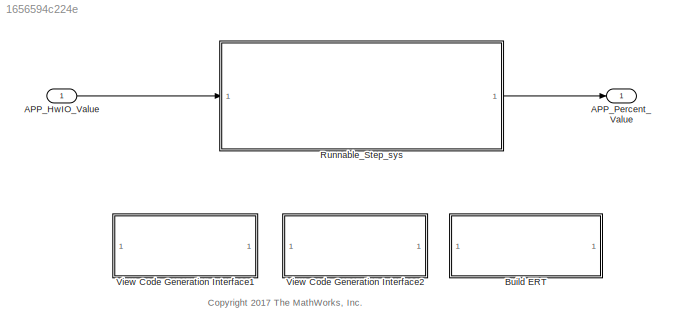
MODEL slx_1656594c224e
KIND model
CONFIG AbsTol = auto
CONFIG EnableMultiTasking = off
CONFIG FixedStep = 0.005
CONFIG MaxStep = auto
CONFIG MinStep = auto
CONFIG PreLoadFcn = SetpointPercent_LkupTbl = Simulink.LookupTable;\nSetpointPercent_LkupTbl.Table.DataType = 'single';\nSetpointPercent_LkupTbl.Table.FieldName = 'Table';\nSetpointPercent_LkupTbl.Table.Value = ...\n  [0 10 20 30 40 50 60 70 80 90 100];\nSetpointPercent_LkupTbl.BreakpointsSpecification = 'Explicit values';\nSetpointPercent_LkupTbl.SupportTunableSize = false;\nSetpointPercent_LkupTbl.Breakpoints.DataType = '...<+278ch>
CONFIG RelTol = 1e-3
CONFIG SampleTimeConstraint = Unconstrained
CONFIG SolverName = FixedStepDiscrete
CONFIG StartTime = 0.0
CONFIG StopTime = 10.0
BLOCK [Inport] APP_HwIO_Value
  OutDataTypeStr = uint16
  PortDimensions = 1
  SamplingMode = Sample based
  SignalType = real
BLOCK [Outport] APP_Percent_Value
  OutDataTypeStr = single
  PortDimensions = 1
  SamplingMode = Sample based
  SignalType = real
  VectorParamsAs1DForOutWhenUnconnected = off
BLOCK [SubSystem] Build ERT
  OpenFcn = try\n    if ~exist('rtwdemo_ert', 'dir')\n        disp('Creating working directory rtwdemo_ert')\n        mkdir('rtwdemo_ert')\n    end\n    cd('rtwdemo_ert');\n    rtwbuilddemomodel(bdroot);\n    cd('..');\ncatch myException\n    rethrow(myException);\nend
  PermitHierarchicalResolution = ExplicitOnly
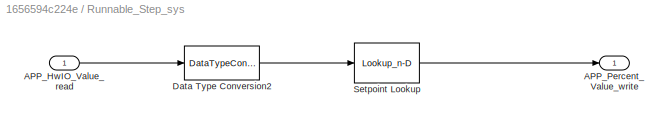
BLOCK [SubSystem] Runnable_Step_sys
  SystemSampleTime = 0.005
  TreatAsAtomicUnit = on
BLOCK [Inport] Runnable_Step_sys/APP_HwIO_Value_read
BLOCK [Outport] Runnable_Step_sys/APP_Percent_Value_write
  VectorParamsAs1DForOutWhenUnconnected = off
BLOCK [DataTypeConversion] Runnable_Step_sys/Data Type Conversion2
  OutDataTypeStr = single
  RndMeth = Floor
  SaturateOnIntegerOverflow = off
BLOCK [Lookup_n-D] Runnable_Step_sys/Setpoint Lookup
  BreakpointsForDimension1 = TPSPercentBkpt
  BreakpointsForDimension1DataTypeStr = single
  DataSpecification = Lookup table object
  ExtrapMethod = Clip
  IndexSearchMethod = Linear search
  InputPortMap = u0
  InternalRulePriority = Speed
  LookupTableObject = SetpointPercent_LkupTbl
  NumberOfTableDimensions = 1
  OutDataTypeStr = single
  RndMeth = Simplest
  Table = TPSPercentTbl
  TableDataTypeStr = single
BLOCK [SubSystem] View Code Generation Interface1
  OpenFcn = autosar_ui_launch(bdroot)
  PermitHierarchicalResolution = ExplicitOnly
BLOCK [SubSystem] View Code Generation Interface2
  OpenFcn = dlg = slCfgPrmDlg(bdroot,'Open');\ndlg = slCfgPrmDlg(bdroot,'TurnToPage',[message('RTW:configSet:configSetCodeGen').getString,'/',message('RTW:autosar:autosarCodeGenOptions').getString]); \nclear dlg;
  PermitHierarchicalResolution = ExplicitOnly
ANNOTATION (root): <copyright redacted>
LINE APP_HwIO_Value:1 -> Runnable_Step_sys:1
LINE Runnable_Step_sys/APP_HwIO_Value_read:1 -> Runnable_Step_sys/Data Type Conversion2:1
LINE Runnable_Step_sys/Data Type Conversion2:1 -> Runnable_Step_sys/Setpoint Lookup:1
LINE Runnable_Step_sys/Setpoint Lookup:1 -> Runnable_Step_sys/APP_Percent_Value_write:1
LINE Runnable_Step_sys:1 -> APP_Percent_Value:1
